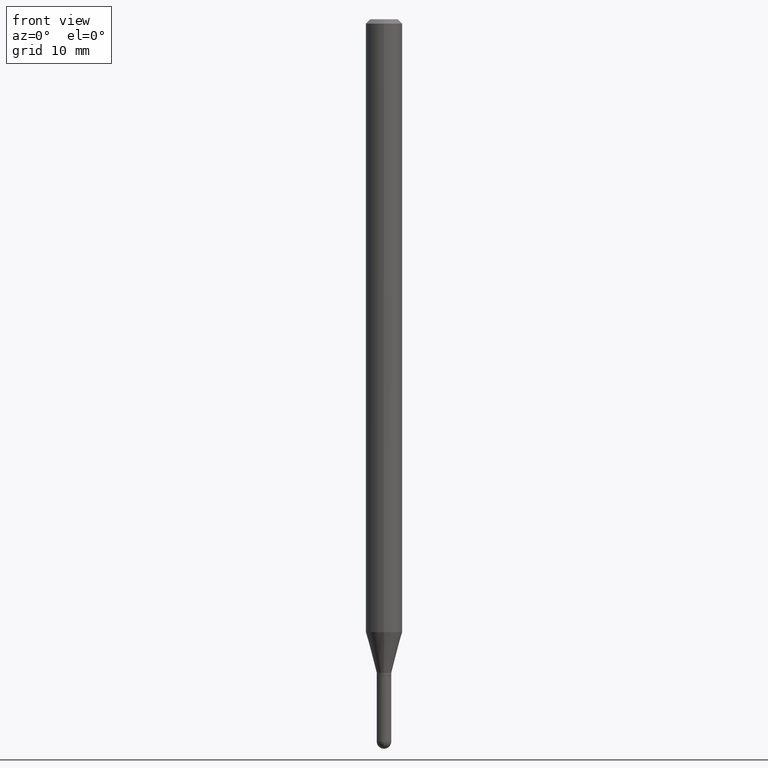
[diagram: clean part render]
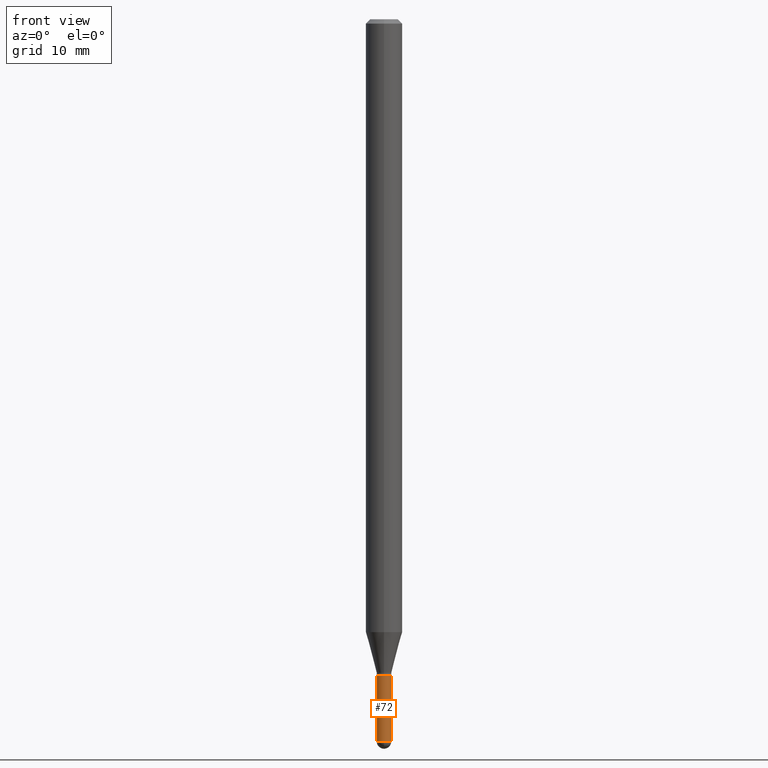
[diagram: same view with one face highlighted and labeled with its STEP entity id]
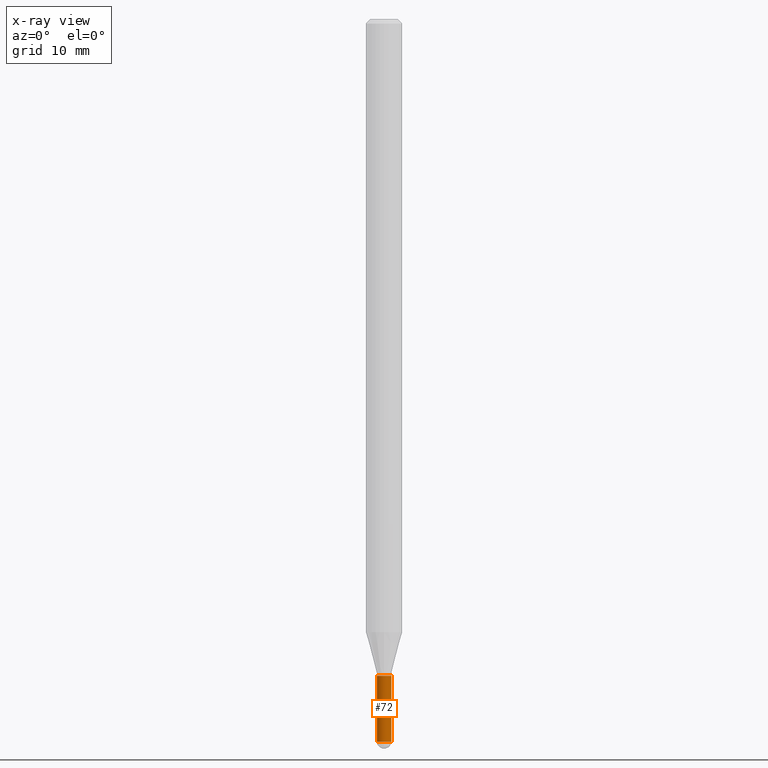
[diagram: x-ray of the same camera — body ghosted, the highlighted face saturated]
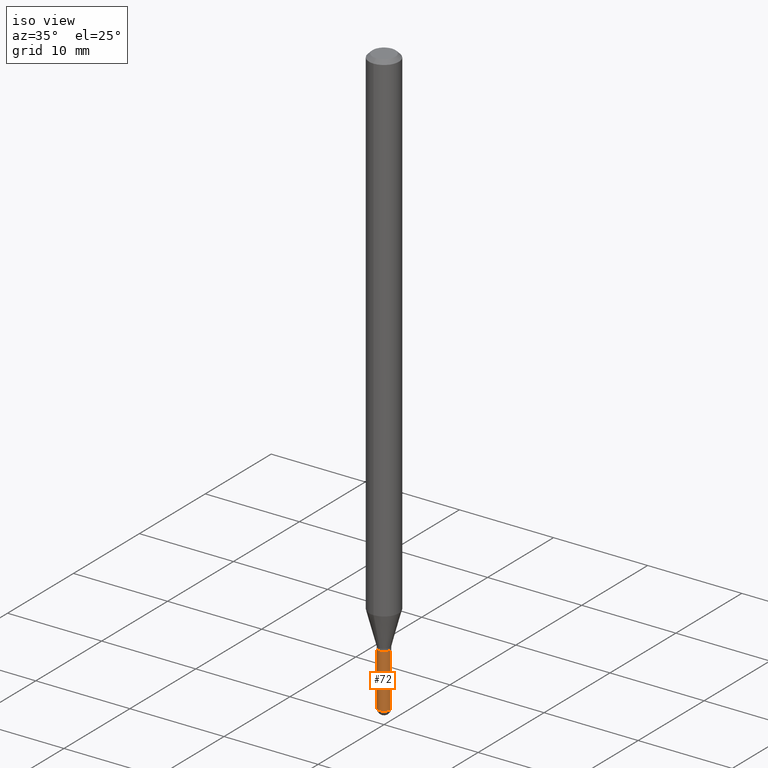
[diagram: same view with one face highlighted and labeled with its STEP entity id]
A machine part, front view. The second image highlights one B-rep face of the part: STEP entity #72.
The next image is the same camera in x-ray: the body ghosted, the highlighted face saturated — about 0% of this face is hidden behind the body in this view.
A second angle (iso view) of the same face is appended — the face is thin or edge-on in the first view.
In plain terms, the highlighted cylindrical surface (edge-blend (fillet) strip) has radius 0.635 mm, axis along (-0, 0, 1).
Its self-contained STEP definition (entity closure, byte-faithful):
#3 = DIRECTION ( 'NONE',  ( -2.445468806185136597E-29, 3.491481338843145583E-15, 1.000000000000000000 ) ) ;
#6 = AXIS2_PLACEMENT_3D ( 'NONE', #404, #3, #210 ) ;
#21 = EDGE_LOOP ( 'NONE', ( #380, #413, #459, #385, #435 ) ) ;
#24 = DIRECTION ( 'NONE',  ( 1.000000000000000000, -6.982962677686267499E-15, 4.876176775795936353E-29 ) ) ;
#32 = EDGE_CURVE ( 'NONE', #219, #307, #392, .T. ) ;
#42 = LINE ( 'NONE', #93, #80 ) ;
#51 = DIRECTION ( 'NONE',  ( 1.000000000000000000, -6.982962677686254878E-15, 0.000000000000000000 ) ) ;
#54 = EDGE_CURVE ( 'NONE', #262, #364, #353, .T. ) ;
#56 = CARTESIAN_POINT ( 'NONE',  ( -1.776356839399633526E-16, -0.02500000000000847378, -2.475000000000000089 ) ) ;
#60 = DIRECTION ( 'NONE',  ( -2.445468806185136597E-29, 3.491481338843145583E-15, 1.000000000000000000 ) ) ;
#71 = CARTESIAN_POINT ( 'NONE',  ( 0.02500000000000000486, -8.423198729959088407E-15, -2.475000000000000089 ) ) ;
#72 = ADVANCED_FACE ( 'NONE', ( #150 ), #178, .T. ) ;
#80 = VECTOR ( 'NONE', #247, 39.37007874015748143 ) ;
#93 = CARTESIAN_POINT ( 'NONE',  ( -0.02500000000000000486, 1.776356839400250810E-16, -1.229733772563726656E-30 ) ) ;
#117 = EDGE_CURVE ( 'NONE', #307, #262, #239, .T. ) ;
#150 = FACE_OUTER_BOUND ( 'NONE', #21, .T. ) ;
#154 = DIRECTION ( 'NONE',  ( 1.000000000000000000, -6.982962677686253300E-15, 0.000000000000000000 ) ) ;
#165 = CARTESIAN_POINT ( 'NONE',  ( 0.02500000000000000486, -1.745740669421567171E-16, 1.219044193948984299E-30 ) ) ;
#171 = CARTESIAN_POINT ( 'NONE',  ( -0.02500000000000000486, -8.070988979076907324E-15, -2.475000000000000089 ) ) ;
#178 = CYLINDRICAL_SURFACE ( 'NONE', #349, 0.02500000000000000486 ) ;
#185 = VERTEX_POINT ( 'NONE', #196 ) ;
#196 = CARTESIAN_POINT ( 'NONE',  ( -0.02500000000000000139, -8.070988979076907324E-15, -2.250000000000000000 ) ) ;
#210 = DIRECTION ( 'NONE',  ( 1.000000000000000000, -6.982962677686253300E-15, 0.000000000000000000 ) ) ;
#214 = CARTESIAN_POINT ( 'NONE',  ( 0.02500000000000000139, -8.030407079339233538E-15, -2.250000000000000000 ) ) ;
#219 = VERTEX_POINT ( 'NONE', #171 ) ;
#239 = CIRCLE ( 'NONE', #264, 0.02500000000000000486 ) ;
#247 = DIRECTION ( 'NONE',  ( -2.445468806185136877E-29, 3.491481338843145188E-15, 1.000000000000000000 ) ) ;
#262 = VERTEX_POINT ( 'NONE', #71 ) ;
#264 = AXIS2_PLACEMENT_3D ( 'NONE', #429, #507, #154 ) ;
#278 = DIRECTION ( 'NONE',  ( -2.445468806185136877E-29, 3.491481338843145188E-15, 1.000000000000000000 ) ) ;
#307 = VERTEX_POINT ( 'NONE', #56 ) ;
#312 = DIRECTION ( 'NONE',  ( -2.445468806185136597E-29, 3.491481338843145583E-15, 1.000000000000000000 ) ) ;
#320 = EDGE_CURVE ( 'NONE', #219, #185, #42, .T. ) ;
#338 = CARTESIAN_POINT ( 'NONE',  ( 5.502304813916557343E-29, -7.855833012397078448E-15, -2.250000000000000000 ) ) ;
#349 = AXIS2_PLACEMENT_3D ( 'NONE', #505, #312, #24 ) ;
#353 = LINE ( 'NONE', #165, #409 ) ;
#364 = VERTEX_POINT ( 'NONE', #214 ) ;
#380 = ORIENTED_EDGE ( 'NONE', *, *, #320, .F. ) ;
#385 = ORIENTED_EDGE ( 'NONE', *, *, #54, .T. ) ;
#392 = CIRCLE ( 'NONE', #6, 0.02500000000000000486 ) ;
#395 = AXIS2_PLACEMENT_3D ( 'NONE', #338, #60, #51 ) ;
#404 = CARTESIAN_POINT ( 'NONE',  ( 6.052535295308213750E-29, -8.641416313636786609E-15, -2.475000000000000089 ) ) ;
#409 = VECTOR ( 'NONE', #278, 39.37007874015748143 ) ;
#413 = ORIENTED_EDGE ( 'NONE', *, *, #32, .T. ) ;
#426 = EDGE_CURVE ( 'NONE', #185, #364, #501, .T. ) ;
#429 = CARTESIAN_POINT ( 'NONE',  ( 6.052535295308213750E-29, -8.641416313636786609E-15, -2.475000000000000089 ) ) ;
#435 = ORIENTED_EDGE ( 'NONE', *, *, #426, .F. ) ;
#459 = ORIENTED_EDGE ( 'NONE', *, *, #117, .T. ) ;
#501 = CIRCLE ( 'NONE', #395, 0.02500000000000000139 ) ;
#505 = CARTESIAN_POINT ( 'NONE',  ( 0.000000000000000000, 0.000000000000000000, 0.000000000000000000 ) ) ;
#507 = DIRECTION ( 'NONE',  ( -2.445468806185136597E-29, 3.491481338843145583E-15, 1.000000000000000000 ) ) ;